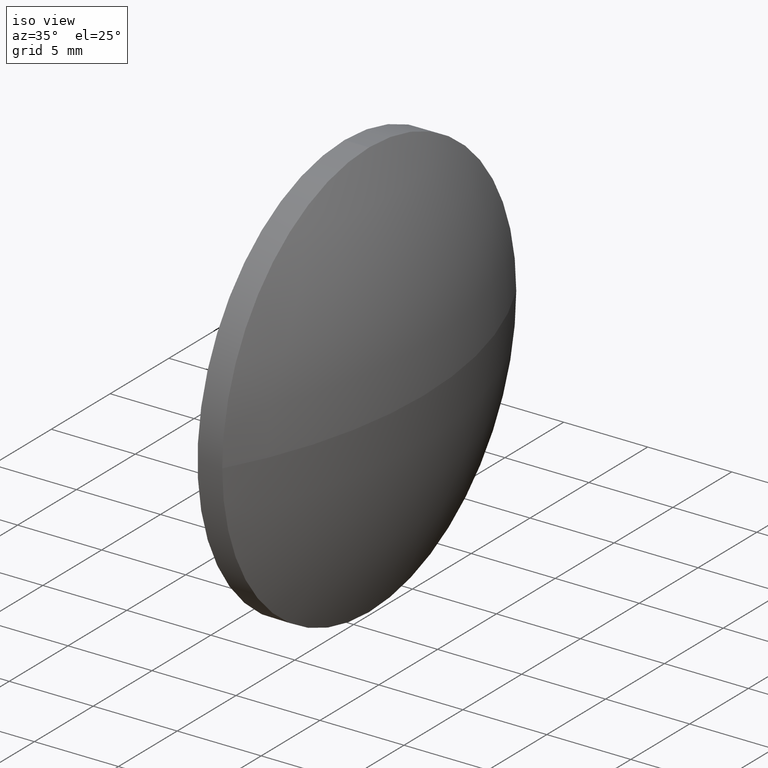
[diagram: clean part render]
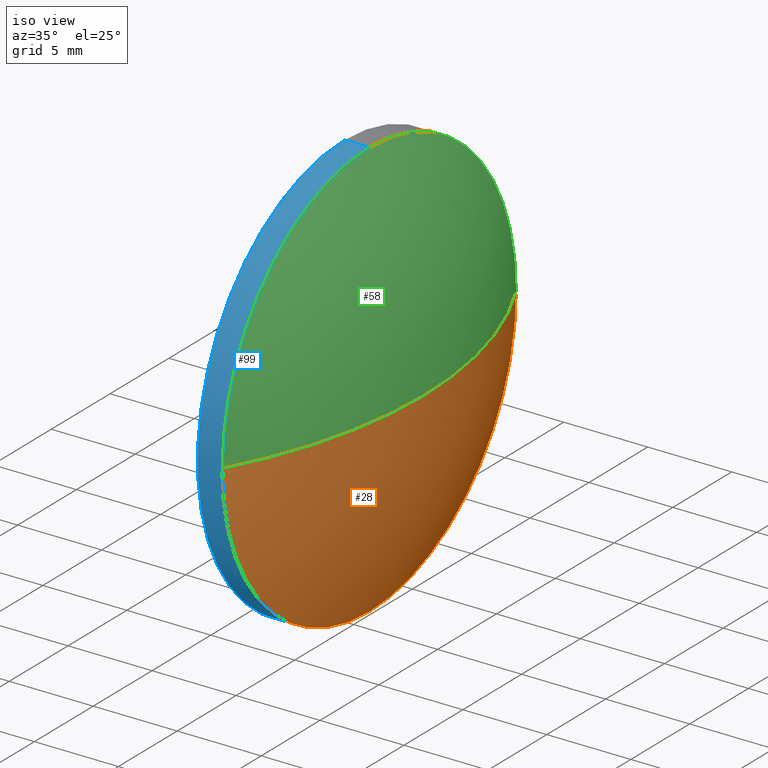
[diagram: same view with three faces highlighted in distinct colors, each labeled with its STEP entity id]
A machine part, iso view with three faces highlighted in distinct colors.
Their STEP definitions:

[orange] entity #28 — the highlighted spherical surface has radius 25.8023 mm.
#2 = ORIENTED_EDGE ( 'NONE', *, *, #121, .F. ) ;
#4 = CARTESIAN_POINT ( 'NONE',  ( 535.4521553744855300, 140.6810653436631100, 0.0000000000000000000 ) ) ;
#6 = DIRECTION ( 'NONE',  ( -0.0000000000000000000, 0.0000000000000000000, 1.000000000000000000 ) ) ;
#10 = CARTESIAN_POINT ( 'NONE',  ( 538.6821553744855500, 140.6810653436630200, 0.0000000000000000000 ) ) ;
#14 = EDGE_CURVE ( 'NONE', #124, #115, #74, .T. ) ;
#21 = DIRECTION ( 'NONE',  ( 1.000000000000000000, 0.0000000000000000000, 0.0000000000000000000 ) ) ;
#28 = ADVANCED_FACE ( 'NONE', ( #176 ), #102, .T. ) ;
#29 = ORIENTED_EDGE ( 'NONE', *, *, #14, .F. ) ;
#32 = EDGE_CURVE ( 'NONE', #93, #40, #139, .T. ) ;
#37 = CARTESIAN_POINT ( 'NONE',  ( 535.4521553744855300, 128.1810653436630800, -1.530808498934185000E-015 ) ) ;
#40 = VERTEX_POINT ( 'NONE', #37 ) ;
#43 = DIRECTION ( 'NONE',  ( 0.0000000000000000000, 0.0000000000000000000, 1.000000000000000000 ) ) ;
#45 = AXIS2_PLACEMENT_3D ( 'NONE', #4, #52, #50 ) ;
#46 = EDGE_LOOP ( 'NONE', ( #29, #144, #147, #2 ) ) ;
#47 = AXIS2_PLACEMENT_3D ( 'NONE', #126, #82, #43 ) ;
#50 = DIRECTION ( 'NONE',  ( 0.0000000000000000000, 0.0000000000000000000, 1.000000000000000000 ) ) ;
#51 = CIRCLE ( 'NONE', #47, 12.49999999999998400 ) ;
#52 = DIRECTION ( 'NONE',  ( -1.000000000000000000, -0.0000000000000000000, -0.0000000000000000000 ) ) ;
#72 = CARTESIAN_POINT ( 'NONE',  ( 512.8798488729374900, 140.6810653436630200, 0.0000000000000000000 ) ) ;
#74 = CIRCLE ( 'NONE', #110, 25.80230650154802400 ) ;
#80 = CARTESIAN_POINT ( 'NONE',  ( 535.4521553744855300, 140.6810653436631100, -12.49999999999998400 ) ) ;
#82 = DIRECTION ( 'NONE',  ( -1.000000000000000000, -0.0000000000000000000, -0.0000000000000000000 ) ) ;
#93 = VERTEX_POINT ( 'NONE', #80 ) ;
#102 = SPHERICAL_SURFACE ( 'NONE', #150, 25.80230650154806300 ) ;
#104 = CARTESIAN_POINT ( 'NONE',  ( 512.8798488729374900, 140.6810653436630200, 0.0000000000000000000 ) ) ;
#108 = CARTESIAN_POINT ( 'NONE',  ( 535.4521553744855300, 153.1810653436630500, 0.0000000000000000000 ) ) ;
#110 = AXIS2_PLACEMENT_3D ( 'NONE', #122, #6, #21 ) ;
#115 = VERTEX_POINT ( 'NONE', #108 ) ;
#117 = DIRECTION ( 'NONE',  ( 0.0000000000000000000, 1.000000000000000000, 0.0000000000000000000 ) ) ;
#121 = EDGE_CURVE ( 'NONE', #115, #93, #51, .T. ) ;
#122 = CARTESIAN_POINT ( 'NONE',  ( 512.8798488729374900, 140.6810653436630200, 0.0000000000000000000 ) ) ;
#124 = VERTEX_POINT ( 'NONE', #10 ) ;
#126 = CARTESIAN_POINT ( 'NONE',  ( 535.4521553744855300, 140.6810653436631100, 0.0000000000000000000 ) ) ;
#129 = CIRCLE ( 'NONE', #172, 25.80230650154804900 ) ;
#137 = DIRECTION ( 'NONE',  ( 0.0000000000000000000, 1.000000000000000000, 1.224646799147353900E-016 ) ) ;
#139 = CIRCLE ( 'NONE', #45, 12.49999999999998400 ) ;
#144 = ORIENTED_EDGE ( 'NONE', *, *, #177, .T. ) ;
#147 = ORIENTED_EDGE ( 'NONE', *, *, #32, .F. ) ;
#150 = AXIS2_PLACEMENT_3D ( 'NONE', #104, #164, #117 ) ;
#152 = DIRECTION ( 'NONE',  ( 0.0000000000000000000, 1.224646799147353200E-016, -1.000000000000000000 ) ) ;
#164 = DIRECTION ( 'NONE',  ( -0.0000000000000000000, 0.0000000000000000000, -1.000000000000000000 ) ) ;
#172 = AXIS2_PLACEMENT_3D ( 'NONE', #72, #152, #137 ) ;
#176 = FACE_OUTER_BOUND ( 'NONE', #46, .T. ) ;
#177 = EDGE_CURVE ( 'NONE', #124, #40, #129, .T. ) ;

[blue] entity #99 — the highlighted cylindrical surface (partial cylindrical patch) has radius 12.5 mm, axis along (-1, -0, -0).
#4 = CARTESIAN_POINT ( 'NONE',  ( 535.4521553744855300, 140.6810653436631100, 0.0000000000000000000 ) ) ;
#5 = LINE ( 'NONE', #7, #134 ) ;
#7 = CARTESIAN_POINT ( 'NONE',  ( 529.2401241325956100, 140.6810653436631100, 12.49999999999998400 ) ) ;
#8 = VERTEX_POINT ( 'NONE', #148 ) ;
#13 = DIRECTION ( 'NONE',  ( -1.000000000000000000, -0.0000000000000000000, -0.0000000000000000000 ) ) ;
#15 = ORIENTED_EDGE ( 'NONE', *, *, #131, .F. ) ;
#20 = AXIS2_PLACEMENT_3D ( 'NONE', #35, #179, #55 ) ;
#22 = EDGE_CURVE ( 'NONE', #40, #8, #107, .T. ) ;
#26 = DIRECTION ( 'NONE',  ( -1.000000000000000000, -0.0000000000000000000, -0.0000000000000000000 ) ) ;
#32 = EDGE_CURVE ( 'NONE', #93, #40, #139, .T. ) ;
#33 = ORIENTED_EDGE ( 'NONE', *, *, #100, .F. ) ;
#35 = CARTESIAN_POINT ( 'NONE',  ( 529.2401241325956100, 140.6810653436631100, 0.0000000000000000000 ) ) ;
#37 = CARTESIAN_POINT ( 'NONE',  ( 535.4521553744855300, 128.1810653436630800, -1.530808498934185000E-015 ) ) ;
#40 = VERTEX_POINT ( 'NONE', #37 ) ;
#45 = AXIS2_PLACEMENT_3D ( 'NONE', #4, #52, #50 ) ;
#48 = VERTEX_POINT ( 'NONE', #118 ) ;
#49 = ORIENTED_EDGE ( 'NONE', *, *, #32, .T. ) ;
#50 = DIRECTION ( 'NONE',  ( 0.0000000000000000000, 0.0000000000000000000, 1.000000000000000000 ) ) ;
#52 = DIRECTION ( 'NONE',  ( -1.000000000000000000, -0.0000000000000000000, -0.0000000000000000000 ) ) ;
#55 = DIRECTION ( 'NONE',  ( 0.0000000000000000000, 0.0000000000000000000, 1.000000000000000000 ) ) ;
#60 = ORIENTED_EDGE ( 'NONE', *, *, #22, .T. ) ;
#64 = DIRECTION ( 'NONE',  ( -1.000000000000000000, -0.0000000000000000000, -0.0000000000000000000 ) ) ;
#73 = VECTOR ( 'NONE', #26, 1000.000000000000000 ) ;
#76 = EDGE_LOOP ( 'NONE', ( #15, #49, #60, #159, #33 ) ) ;
#77 = DIRECTION ( 'NONE',  ( -1.000000000000000000, -0.0000000000000000000, -0.0000000000000000000 ) ) ;
#78 = EDGE_CURVE ( 'NONE', #8, #48, #5, .T. ) ;
#80 = CARTESIAN_POINT ( 'NONE',  ( 535.4521553744855300, 140.6810653436631100, -12.49999999999998400 ) ) ;
#91 = CIRCLE ( 'NONE', #175, 12.49999999999998400 ) ;
#93 = VERTEX_POINT ( 'NONE', #80 ) ;
#95 = DIRECTION ( 'NONE',  ( 0.0000000000000000000, 0.0000000000000000000, 1.000000000000000000 ) ) ;
#97 = VERTEX_POINT ( 'NONE', #151 ) ;
#99 = ADVANCED_FACE ( 'NONE', ( #170 ), #142, .T. ) ;
#100 = EDGE_CURVE ( 'NONE', #97, #48, #91, .T. ) ;
#105 = LINE ( 'NONE', #125, #73 ) ;
#107 = CIRCLE ( 'NONE', #132, 12.49999999999998400 ) ;
#118 = CARTESIAN_POINT ( 'NONE',  ( 533.9821553744856100, 140.6810653436631100, 12.49999999999998400 ) ) ;
#123 = CARTESIAN_POINT ( 'NONE',  ( 533.9821553744856100, 140.6810653436631100, 0.0000000000000000000 ) ) ;
#125 = CARTESIAN_POINT ( 'NONE',  ( 529.2401241325956100, 140.6810653436631100, -12.49999999999998400 ) ) ;
#131 = EDGE_CURVE ( 'NONE', #93, #97, #105, .T. ) ;
#132 = AXIS2_PLACEMENT_3D ( 'NONE', #133, #64, #167 ) ;
#133 = CARTESIAN_POINT ( 'NONE',  ( 535.4521553744855300, 140.6810653436631100, 0.0000000000000000000 ) ) ;
#134 = VECTOR ( 'NONE', #77, 1000.000000000000000 ) ;
#139 = CIRCLE ( 'NONE', #45, 12.49999999999998400 ) ;
#142 = CYLINDRICAL_SURFACE ( 'NONE', #20, 12.49999999999998400 ) ;
#148 = CARTESIAN_POINT ( 'NONE',  ( 535.4521553744855300, 140.6810653436631100, 12.49999999999998400 ) ) ;
#151 = CARTESIAN_POINT ( 'NONE',  ( 533.9821553744856100, 140.6810653436631100, -12.49999999999998400 ) ) ;
#159 = ORIENTED_EDGE ( 'NONE', *, *, #78, .T. ) ;
#167 = DIRECTION ( 'NONE',  ( 0.0000000000000000000, 0.0000000000000000000, 1.000000000000000000 ) ) ;
#170 = FACE_OUTER_BOUND ( 'NONE', #76, .T. ) ;
#175 = AXIS2_PLACEMENT_3D ( 'NONE', #123, #13, #95 ) ;
#179 = DIRECTION ( 'NONE',  ( -1.000000000000000000, -0.0000000000000000000, -0.0000000000000000000 ) ) ;

[green] entity #58 — the highlighted spherical surface has radius 25.8023 mm.
#1 = EDGE_LOOP ( 'NONE', ( #75, #130, #57, #168 ) ) ;
#6 = DIRECTION ( 'NONE',  ( -0.0000000000000000000, 0.0000000000000000000, 1.000000000000000000 ) ) ;
#8 = VERTEX_POINT ( 'NONE', #148 ) ;
#10 = CARTESIAN_POINT ( 'NONE',  ( 538.6821553744855500, 140.6810653436630200, 0.0000000000000000000 ) ) ;
#14 = EDGE_CURVE ( 'NONE', #124, #115, #74, .T. ) ;
#18 = FACE_OUTER_BOUND ( 'NONE', #1, .T. ) ;
#19 = CARTESIAN_POINT ( 'NONE',  ( 512.8798488729374900, 140.6810653436630200, 0.0000000000000000000 ) ) ;
#21 = DIRECTION ( 'NONE',  ( 1.000000000000000000, 0.0000000000000000000, 0.0000000000000000000 ) ) ;
#22 = EDGE_CURVE ( 'NONE', #40, #8, #107, .T. ) ;
#37 = CARTESIAN_POINT ( 'NONE',  ( 535.4521553744855300, 128.1810653436630800, -1.530808498934185000E-015 ) ) ;
#40 = VERTEX_POINT ( 'NONE', #37 ) ;
#57 = ORIENTED_EDGE ( 'NONE', *, *, #71, .F. ) ;
#58 = ADVANCED_FACE ( 'NONE', ( #18 ), #68, .T. ) ;
#59 = AXIS2_PLACEMENT_3D ( 'NONE', #19, #136, #62 ) ;
#62 = DIRECTION ( 'NONE',  ( 0.0000000000000000000, 1.000000000000000000, 0.0000000000000000000 ) ) ;
#63 = CARTESIAN_POINT ( 'NONE',  ( 535.4521553744855300, 140.6810653436631100, 0.0000000000000000000 ) ) ;
#64 = DIRECTION ( 'NONE',  ( -1.000000000000000000, -0.0000000000000000000, -0.0000000000000000000 ) ) ;
#68 = SPHERICAL_SURFACE ( 'NONE', #59, 25.80230650154806300 ) ;
#71 = EDGE_CURVE ( 'NONE', #8, #115, #173, .T. ) ;
#72 = CARTESIAN_POINT ( 'NONE',  ( 512.8798488729374900, 140.6810653436630200, 0.0000000000000000000 ) ) ;
#74 = CIRCLE ( 'NONE', #110, 25.80230650154802400 ) ;
#75 = ORIENTED_EDGE ( 'NONE', *, *, #177, .F. ) ;
#107 = CIRCLE ( 'NONE', #132, 12.49999999999998400 ) ;
#108 = CARTESIAN_POINT ( 'NONE',  ( 535.4521553744855300, 153.1810653436630500, 0.0000000000000000000 ) ) ;
#110 = AXIS2_PLACEMENT_3D ( 'NONE', #122, #6, #21 ) ;
#115 = VERTEX_POINT ( 'NONE', #108 ) ;
#120 = DIRECTION ( 'NONE',  ( -1.000000000000000000, -0.0000000000000000000, -0.0000000000000000000 ) ) ;
#122 = CARTESIAN_POINT ( 'NONE',  ( 512.8798488729374900, 140.6810653436630200, 0.0000000000000000000 ) ) ;
#124 = VERTEX_POINT ( 'NONE', #10 ) ;
#129 = CIRCLE ( 'NONE', #172, 25.80230650154804900 ) ;
#130 = ORIENTED_EDGE ( 'NONE', *, *, #14, .T. ) ;
#132 = AXIS2_PLACEMENT_3D ( 'NONE', #133, #64, #167 ) ;
#133 = CARTESIAN_POINT ( 'NONE',  ( 535.4521553744855300, 140.6810653436631100, 0.0000000000000000000 ) ) ;
#135 = DIRECTION ( 'NONE',  ( 0.0000000000000000000, 0.0000000000000000000, 1.000000000000000000 ) ) ;
#136 = DIRECTION ( 'NONE',  ( -0.0000000000000000000, 0.0000000000000000000, -1.000000000000000000 ) ) ;
#137 = DIRECTION ( 'NONE',  ( 0.0000000000000000000, 1.000000000000000000, 1.224646799147353900E-016 ) ) ;
#143 = AXIS2_PLACEMENT_3D ( 'NONE', #63, #120, #135 ) ;
#148 = CARTESIAN_POINT ( 'NONE',  ( 535.4521553744855300, 140.6810653436631100, 12.49999999999998400 ) ) ;
#152 = DIRECTION ( 'NONE',  ( 0.0000000000000000000, 1.224646799147353200E-016, -1.000000000000000000 ) ) ;
#167 = DIRECTION ( 'NONE',  ( 0.0000000000000000000, 0.0000000000000000000, 1.000000000000000000 ) ) ;
#168 = ORIENTED_EDGE ( 'NONE', *, *, #22, .F. ) ;
#172 = AXIS2_PLACEMENT_3D ( 'NONE', #72, #152, #137 ) ;
#173 = CIRCLE ( 'NONE', #143, 12.49999999999998400 ) ;
#177 = EDGE_CURVE ( 'NONE', #124, #40, #129, .T. ) ;